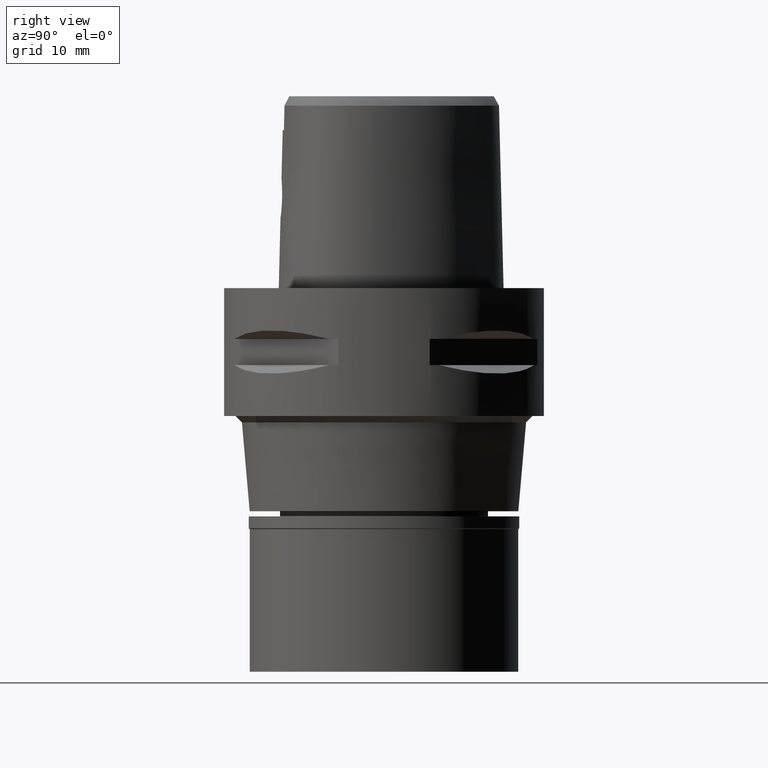
[diagram: clean part render]
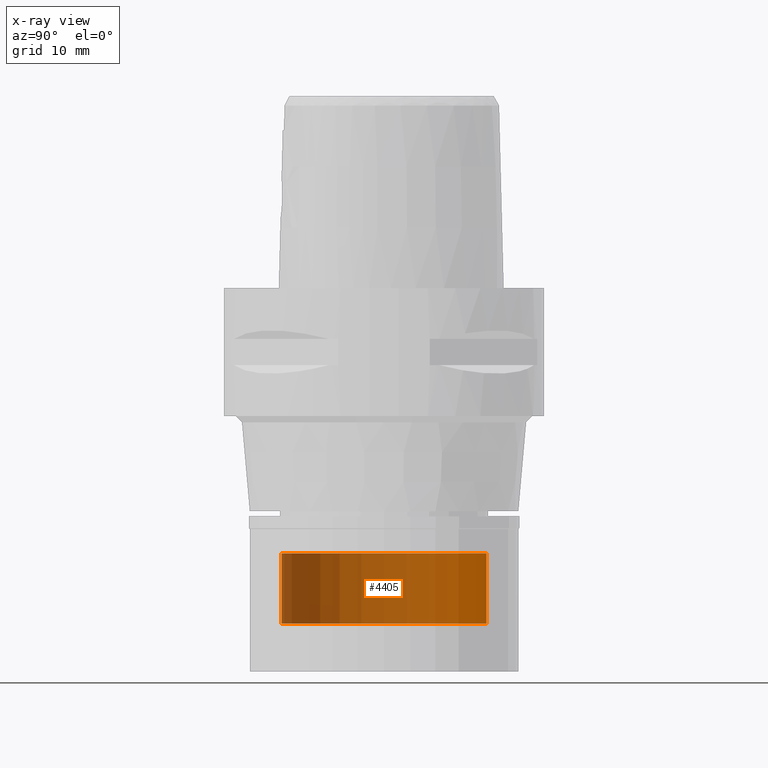
[diagram: x-ray — body ghosted, one internal face saturated and labeled with its STEP entity id]
A machine part, right view, then the same camera in x-ray: the body is ghosted and one INTERNAL B-rep face — a face not visible from any outside direction — is saturated and labeled: STEP entity #4405.
In plain terms, the highlighted cylindrical surface (partial cylindrical patch) has radius 16 mm, axis along (0, 0, -1).
Its self-contained STEP definition (entity closure, byte-faithful):
#175 = VERTEX_POINT ( 'NONE', #202 ) ;
#202 = CARTESIAN_POINT ( 'NONE',  ( 0.0000000000000000000, -16.00000000000000000, -41.50000000000000000 ) ) ;
#222 = DIRECTION ( 'NONE',  ( 0.0000000000000000000, -1.000000000000000000, 0.0000000000000000000 ) ) ;
#410 = DIRECTION ( 'NONE',  ( 0.0000000000000000000, -1.000000000000000000, 0.0000000000000000000 ) ) ;
#618 = DIRECTION ( 'NONE',  ( 0.0000000000000000000, 0.0000000000000000000, -1.000000000000000000 ) ) ;
#646 = VERTEX_POINT ( 'NONE', #4237 ) ;
#924 = CARTESIAN_POINT ( 'NONE',  ( 0.0000000000000000000, -16.00000000000000000, -41.50000000000000000 ) ) ;
#940 = DIRECTION ( 'NONE',  ( 0.0000000000000000000, 0.0000000000000000000, 1.000000000000000000 ) ) ;
#1064 = ORIENTED_EDGE ( 'NONE', *, *, #4522, .T. ) ;
#1401 = ORIENTED_EDGE ( 'NONE', *, *, #3012, .F. ) ;
#1494 = CIRCLE ( 'NONE', #4111, 16.00000000000000000 ) ;
#1554 = CARTESIAN_POINT ( 'NONE',  ( 0.0000000000000000000, 1.256793777624999908E-14, -41.50000000000000000 ) ) ;
#2091 = DIRECTION ( 'NONE',  ( 0.0000000000000000000, 0.0000000000000000000, -1.000000000000000000 ) ) ;
#2109 = AXIS2_PLACEMENT_3D ( 'NONE', #3928, #2091, #222 ) ;
#2228 = VERTEX_POINT ( 'NONE', #4244 ) ;
#2303 = DIRECTION ( 'NONE',  ( 0.0000000000000000000, 0.0000000000000000000, -1.000000000000000000 ) ) ;
#2429 = CYLINDRICAL_SURFACE ( 'NONE', #2109, 16.00000000000000000 ) ;
#2614 = DIRECTION ( 'NONE',  ( 0.0000000000000000000, 0.0000000000000000000, -1.000000000000000000 ) ) ;
#2704 = VECTOR ( 'NONE', #2614, 1000.000000000000000 ) ;
#2919 = EDGE_CURVE ( 'NONE', #3158, #646, #2954, .T. ) ;
#2930 = ORIENTED_EDGE ( 'NONE', *, *, #3784, .T. ) ;
#2954 = LINE ( 'NONE', #4052, #2704 ) ;
#3012 = EDGE_CURVE ( 'NONE', #175, #2228, #4283, .T. ) ;
#3158 = VERTEX_POINT ( 'NONE', #3697 ) ;
#3173 = CARTESIAN_POINT ( 'NONE',  ( 0.0000000000000000000, 1.256793777624999908E-14, -52.50000000000000000 ) ) ;
#3539 = VECTOR ( 'NONE', #618, 1000.000000000000000 ) ;
#3697 = CARTESIAN_POINT ( 'NONE',  ( 0.0000000000000000000, 16.00000000000000000, -41.50000000000000000 ) ) ;
#3784 = EDGE_CURVE ( 'NONE', #175, #3158, #4007, .T. ) ;
#3928 = CARTESIAN_POINT ( 'NONE',  ( 0.0000000000000000000, 1.256793777624999908E-14, 2.625000000000000000 ) ) ;
#4007 = CIRCLE ( 'NONE', #4226, 16.00000000000000000 ) ;
#4052 = CARTESIAN_POINT ( 'NONE',  ( 0.0000000000000000000, 16.00000000000000000, -41.50000000000000000 ) ) ;
#4111 = AXIS2_PLACEMENT_3D ( 'NONE', #3173, #940, #4252 ) ;
#4226 = AXIS2_PLACEMENT_3D ( 'NONE', #1554, #2303, #410 ) ;
#4237 = CARTESIAN_POINT ( 'NONE',  ( 0.0000000000000000000, 16.00000000000000000, -52.50000000000000000 ) ) ;
#4244 = CARTESIAN_POINT ( 'NONE',  ( 0.0000000000000000000, -16.00000000000000000, -52.50000000000000000 ) ) ;
#4252 = DIRECTION ( 'NONE',  ( 0.0000000000000000000, 1.000000000000000000, 0.0000000000000000000 ) ) ;
#4283 = LINE ( 'NONE', #924, #3539 ) ;
#4328 = EDGE_LOOP ( 'NONE', ( #1064, #1401, #2930, #4636 ) ) ;
#4405 = ADVANCED_FACE ( 'NONE', ( #4666 ), #2429, .T. ) ;
#4522 = EDGE_CURVE ( 'NONE', #646, #2228, #1494, .T. ) ;
#4636 = ORIENTED_EDGE ( 'NONE', *, *, #2919, .T. ) ;
#4666 = FACE_OUTER_BOUND ( 'NONE', #4328, .T. ) ;